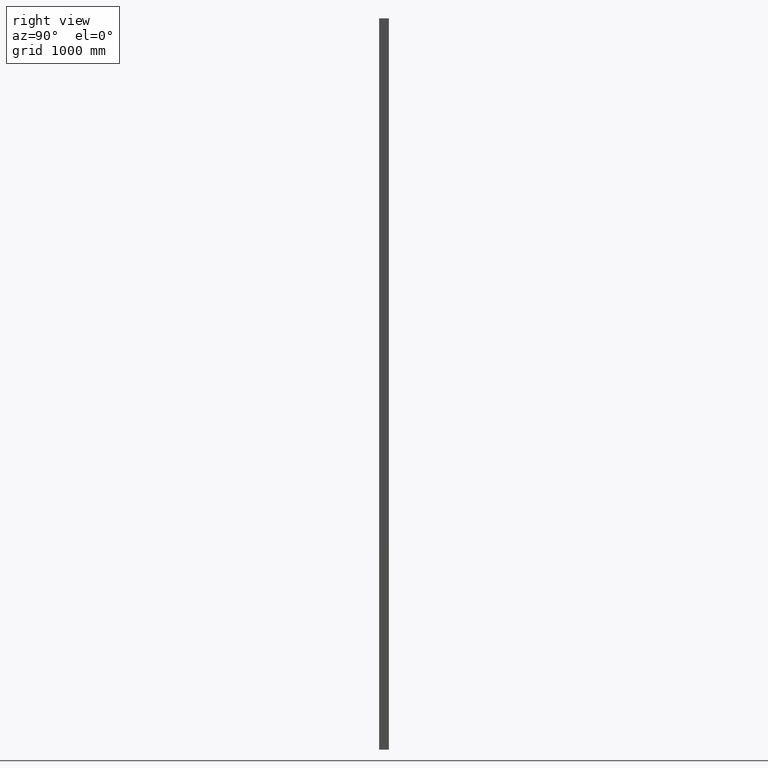
[diagram: clean part render]
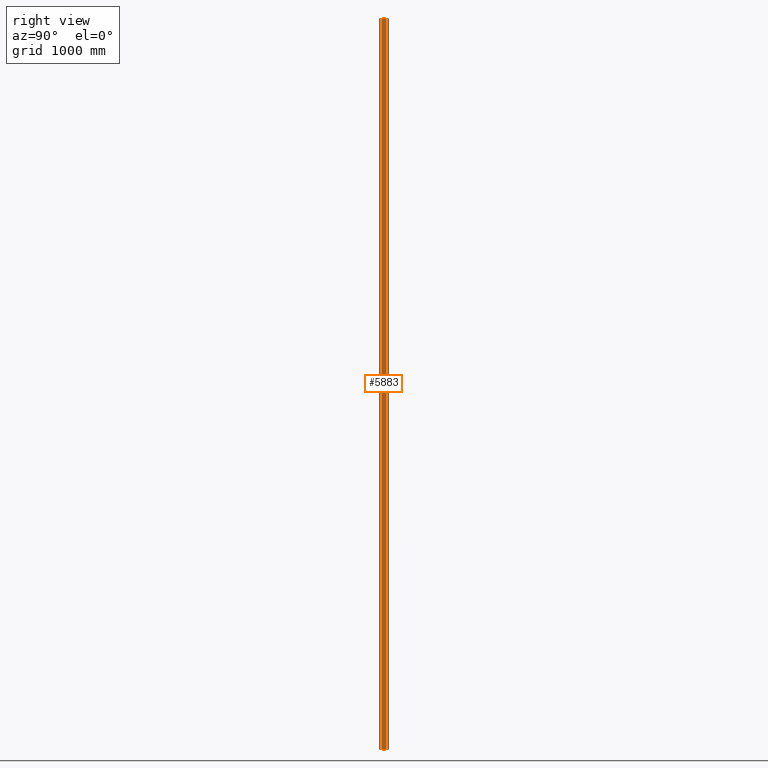
[diagram: same view with one face highlighted and labeled with its STEP entity id]
A machine part, right view. The second image highlights one B-rep face of the part: STEP entity #5883.
In plain terms, the highlighted planar face has unit normal (1, -0, 0).
Its self-contained STEP definition (entity closure, byte-faithful):
#987 = CARTESIAN_POINT ( 'NONE',  ( 40.00000000000000000, -16.00000000000000000, -3000.000000000000000 ) ) ;
#988 = DIRECTION ( 'NONE',  ( 0.0000000000000000000, 0.0000000000000000000, -1.000000000000000000 ) ) ;
#993 = CARTESIAN_POINT ( 'NONE',  ( 40.00000000000000000, 16.00000000000000000, -3000.000000000000000 ) ) ;
#994 = DIRECTION ( 'NONE',  ( -0.0000000000000000000, -0.0000000000000000000, 1.000000000000000000 ) ) ;
#1234 = PLANE ( 'NONE',  #4115 ) ;
#1235 = CARTESIAN_POINT ( 'NONE',  ( 40.00000000000000000, -16.00000000000000000, 0.0000000000000000000 ) ) ;
#1236 = DIRECTION ( 'NONE',  ( 1.000000000000000000, -0.0000000000000000000, 0.0000000000000000000 ) ) ;
#1237 = DIRECTION ( 'NONE',  ( 0.0000000000000000000, 0.0000000000000000000, -1.000000000000000000 ) ) ;
#1280 = CARTESIAN_POINT ( 'NONE',  ( 40.00000000000000000, -40.00000000000000000, -6000.000000000000000 ) ) ;
#1281 = DIRECTION ( 'NONE',  ( -0.0000000000000000000, -1.000000000000000000, -0.0000000000000000000 ) ) ;
#1282 = CARTESIAN_POINT ( 'NONE',  ( 40.00000000000000000, -16.00000000000000000, 0.0000000000000000000 ) ) ;
#1283 = DIRECTION ( 'NONE',  ( -0.0000000000000000000, -1.000000000000000000, -0.0000000000000000000 ) ) ;
#1796 = EDGE_CURVE ( 'NONE', #3195, #3194, #3361, .T. ) ;
#1799 = EDGE_CURVE ( 'NONE', #3193, #3192, #3367, .T. ) ;
#2120 = ORIENTED_EDGE ( 'NONE', *, *, #6127, .F. ) ;
#2121 = ORIENTED_EDGE ( 'NONE', *, *, #1799, .T. ) ;
#2122 = ORIENTED_EDGE ( 'NONE', *, *, #6128, .T. ) ;
#2123 = ORIENTED_EDGE ( 'NONE', *, *, #1796, .T. ) ;
#3054 = EDGE_LOOP ( 'NONE', ( #2120, #2121, #2122, #2123 ) ) ;
#3192 = VERTEX_POINT ( 'NONE', #3481 ) ;
#3193 = VERTEX_POINT ( 'NONE', #3482 ) ;
#3194 = VERTEX_POINT ( 'NONE', #3483 ) ;
#3195 = VERTEX_POINT ( 'NONE', #3484 ) ;
#3361 = LINE ( 'NONE', #987, #3362 ) ;
#3362 = VECTOR ( 'NONE', #988, 1000.000000000000000 ) ;
#3367 = LINE ( 'NONE', #993, #3368 ) ;
#3368 = VECTOR ( 'NONE', #994, 1000.000000000000000 ) ;
#3481 = CARTESIAN_POINT ( 'NONE',  ( 40.00000000000000000, 16.00000000000000000, 0.0000000000000000000 ) ) ;
#3482 = CARTESIAN_POINT ( 'NONE',  ( 40.00000000000000000, 16.00000000000000000, -6000.000000000000000 ) ) ;
#3483 = CARTESIAN_POINT ( 'NONE',  ( 40.00000000000000000, -16.00000000000000000, -6000.000000000000000 ) ) ;
#3484 = CARTESIAN_POINT ( 'NONE',  ( 40.00000000000000000, -16.00000000000000000, 0.0000000000000000000 ) ) ;
#4115 = AXIS2_PLACEMENT_3D ( 'NONE', #1235, #1236, #1237 ) ;
#5158 = FACE_OUTER_BOUND ( 'NONE', #3054, .T. ) ;
#5183 = LINE ( 'NONE', #1280, #5184 ) ;
#5184 = VECTOR ( 'NONE', #1281, 1000.000000000000000 ) ;
#5185 = LINE ( 'NONE', #1282, #5186 ) ;
#5186 = VECTOR ( 'NONE', #1283, 1000.000000000000000 ) ;
#5883 = ADVANCED_FACE ( 'NONE', ( #5158 ), #1234, .T. ) ;
#6127 = EDGE_CURVE ( 'NONE', #3193, #3194, #5183, .T. ) ;
#6128 = EDGE_CURVE ( 'NONE', #3192, #3195, #5185, .T. ) ;